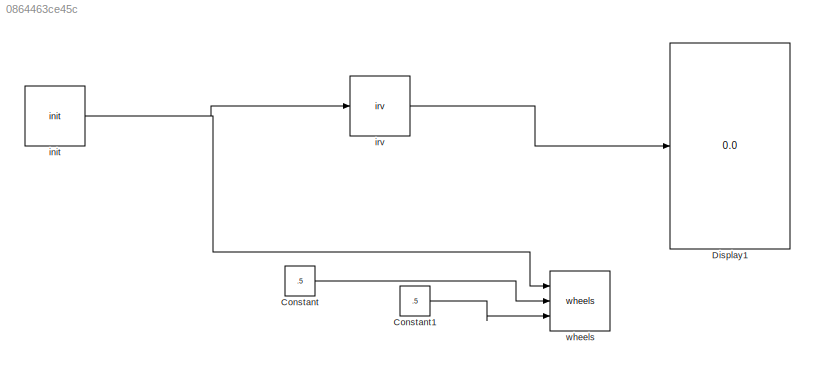
MODEL slx_0864463ce45c
KIND model
CONFIG AbsTol = auto
CONFIG EnableMultiTasking = off
CONFIG FixedStep = auto
CONFIG MaxStep = auto
CONFIG MinStep = auto
CONFIG RelTol = 1e-3
CONFIG SampleTimeConstraint = Unconstrained
CONFIG Solver = VariableStepAuto
CONFIG SolverName = VariableStepAuto
CONFIG StartTime = 0.0
CONFIG StopTime = 10.0
BLOCK [Constant] Constant
  Value = .5
BLOCK [Constant] Constant1
  Value = .5
BLOCK [Display] Display1
  Decimation = 1
  Ports = [1]
BLOCK [Reference] init  REF=DigiConLib/init
  Ports = [0, 1]
  SourceBlock = DigiConLib/init
  SourceType = SubSystem
BLOCK [Reference] irv  REF=DigiConLib/irv
  Ports = [1, 1]
  SourceBlock = DigiConLib/irv
  SourceType = SubSystem
BLOCK [Reference] wheels  REF=DigiConLib/wheels
  Ports = [3]
  SourceBlock = DigiConLib/wheels
  SourceType = SubSystem
LINE Constant1:1 -> wheels:3
LINE Constant:1 -> wheels:2
NET init:1 -> irv:1, wheels:1
LINE irv:1 -> Display1:1
note: NET lines group one-source signal fan-out (src -> all destinations, sorted); 1:1 wires keep LINE
